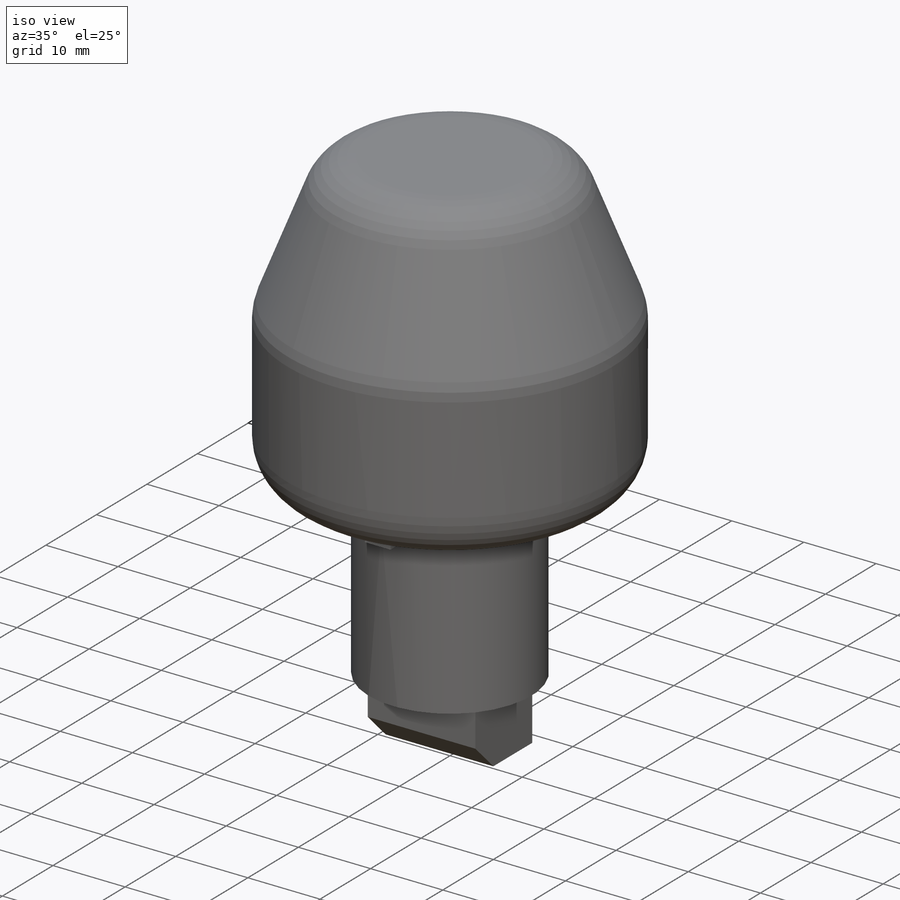
[diagram: iso view]
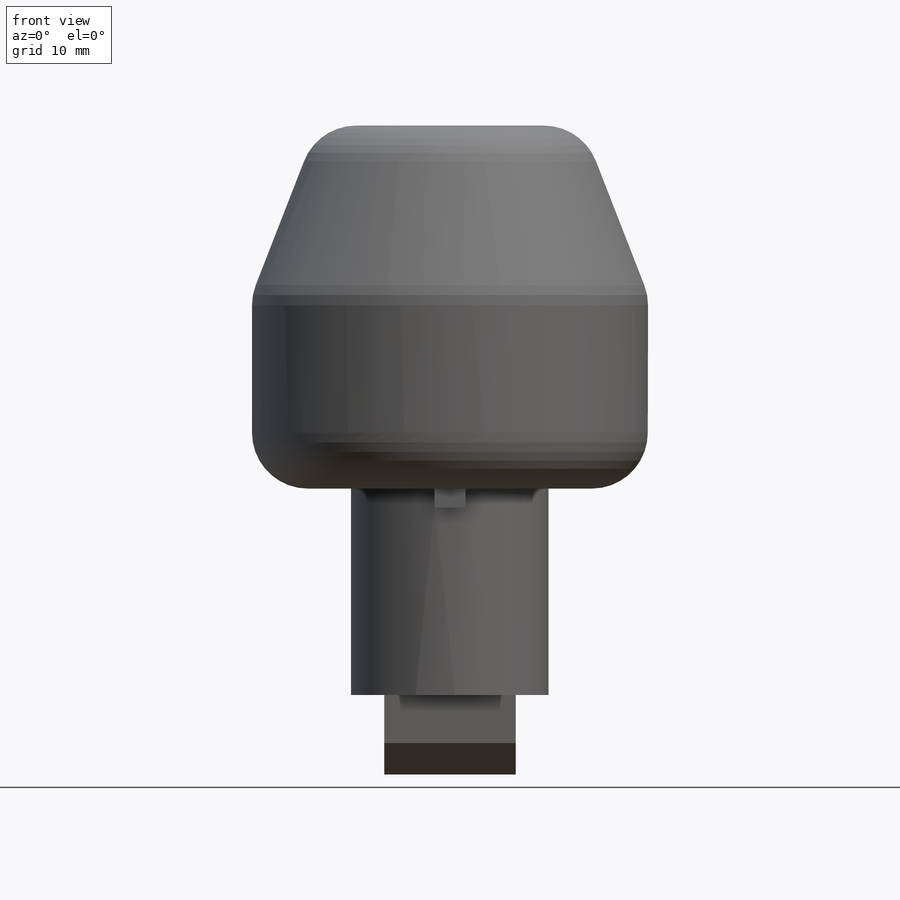
[diagram: front view]
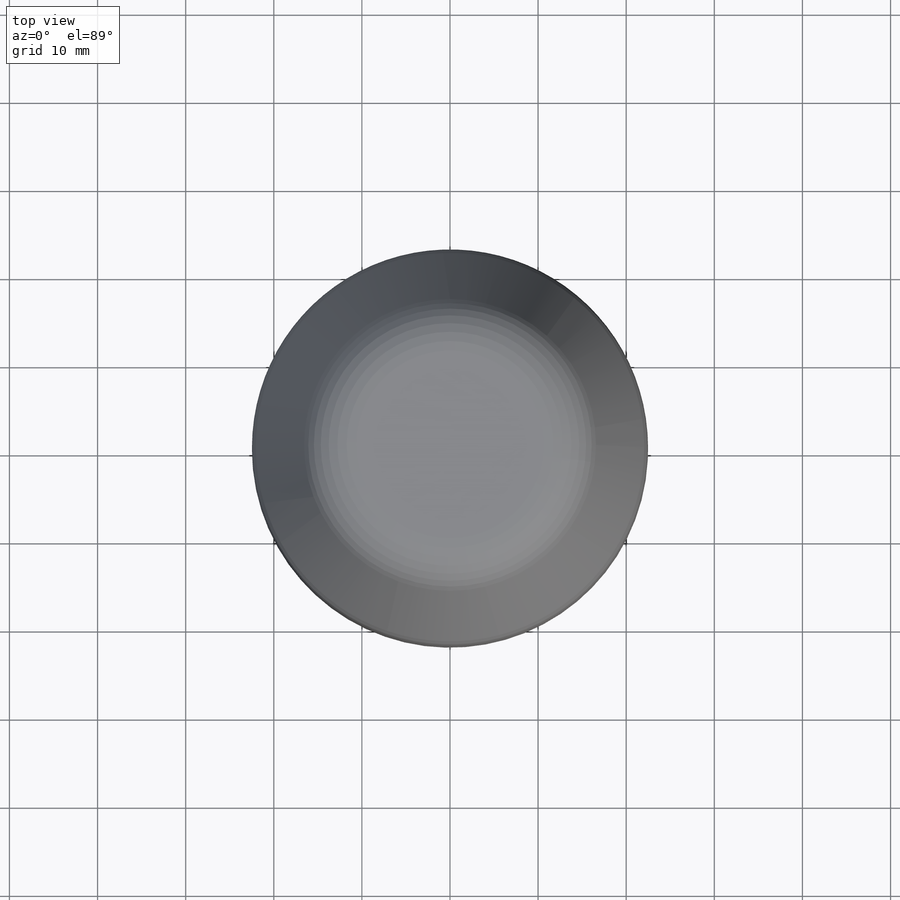
[diagram: top view]
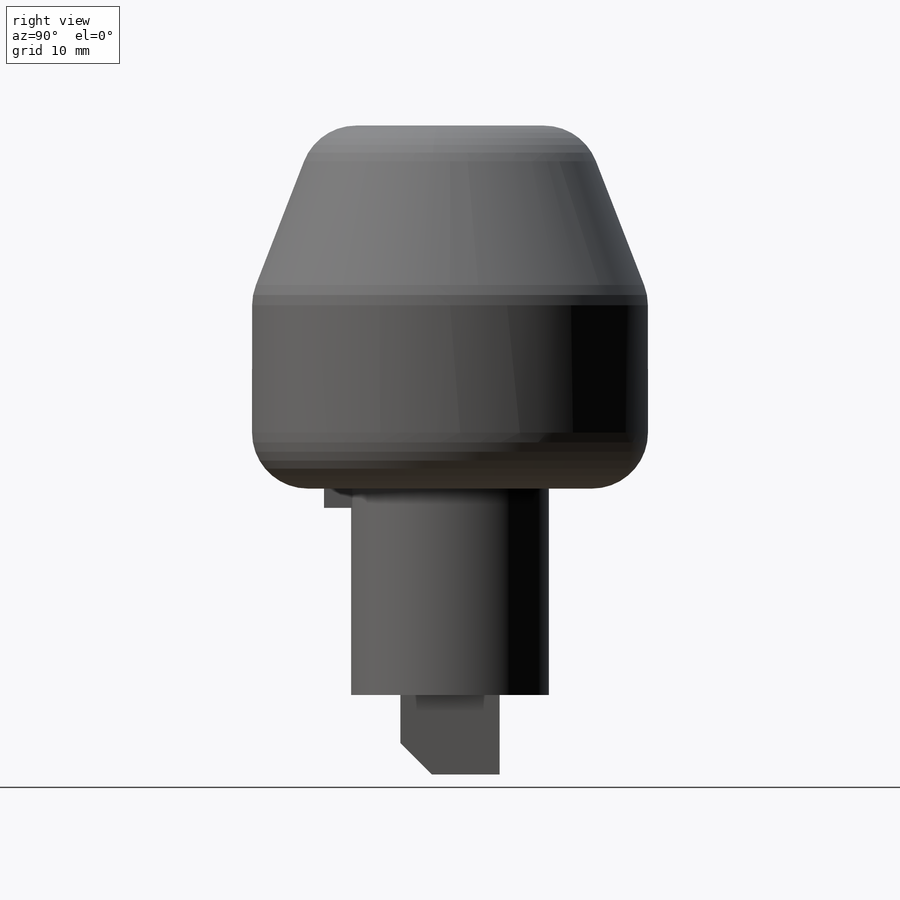
[diagram: right view]
SOLIDWORKS PART (.sldprt)
format: sldprt  version: not decoded by parser v0  size: 362,496 bytes
history: native  units: mm
features: sketch x8, extrude x2, material x1, revolve x1, fillet x1, cut_extrude x1 (+13 scaffold rows collapsed)
feature tree (27):
  scaffold x13  (default folders/planes/origin — collapsed)
  material  "Material <not specified>"
  sketch  "Sketch1"  dims[c1.D1=11.176mm c1.D2=23.4188mm c1.D3=21.9964mm c1.D4=19.304mm c1.D5=20.6121mm c1.D6=22.606mm c1.D7=22.606mm c2.D6=22.606mm c2.D1=22.479mm c3.D6=14.986mm c3.D7=14.986mm c4.D7=~110.236708deg c4.D4=14.986mm c5.D4=111.3deg]
  revolve  "Revolve1"  Angle=360deg
  fillet  "Fillet2"  Radius=6.35mm
  sketch  "Sketch2"  dims[c1.D1=5.461mm c1.D2=5.0292mm c1.D3=5.461mm c2.D3=135.0deg c2.D4=7.6962mm c2.D5=~9.017181mm]
  extrude  "Boss-Extrude1"  Depth=14.9098mm
  sketch  "Sketch3"  dims[D2=0.127mm D3=0.127mm D4=~4.78028mm D5=~4.78028mm D1=0.127mm]
  cut_extrude  "Cut-Extrude1"  Depth=2.54mm
  sketch  "Sketch4"  dims[c1.D1=3.556mm c1.D2=2.1844mm c2.D1=3.556mm c2.D2=2.1844mm]
  extrude  "Boss-Extrude2"  Depth=14.29512mm
  sketch  "Sketch5"
  sketch  "0_0_Point"  dims[Diameter=2.0mm Width=0.0 Depth=0.0 StubLength=2.0mm]
  sketch  "0_1_Point"  dims[Diameter=2.0mm Width=0.0 Depth=0.0 StubLength=2.0mm]
  sketch  "0_2_Point"  dims[Diameter=2.0mm Width=0.0 Depth=0.0 StubLength=2.0mm]
decode coverage: 12 of 13 modeling features carry decoded parameters
note: ~ marks probable driven/reference dimensions
note: suppression state not decoded; provenance and decode notes live in map.json
